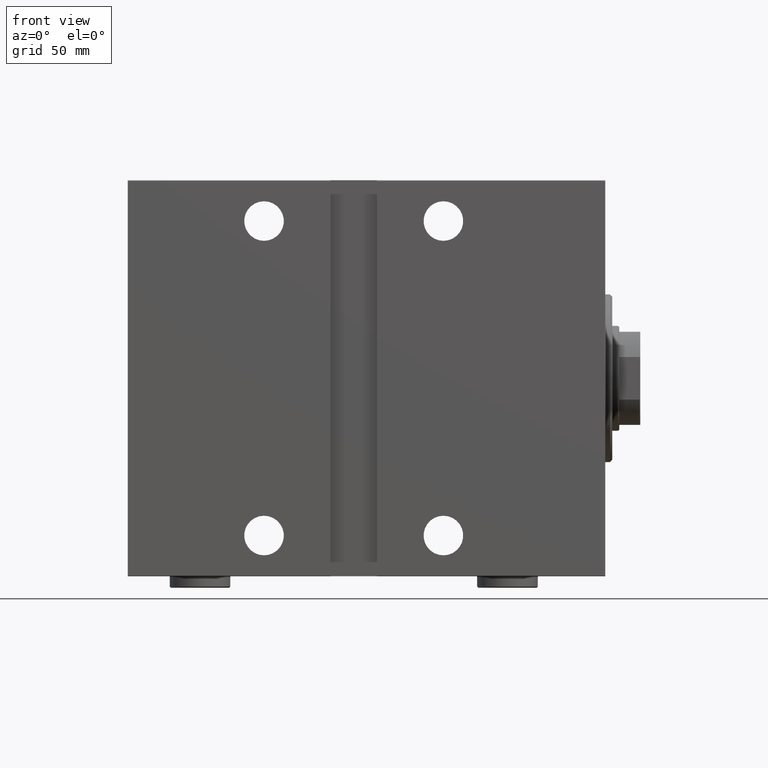
[diagram: clean part render]
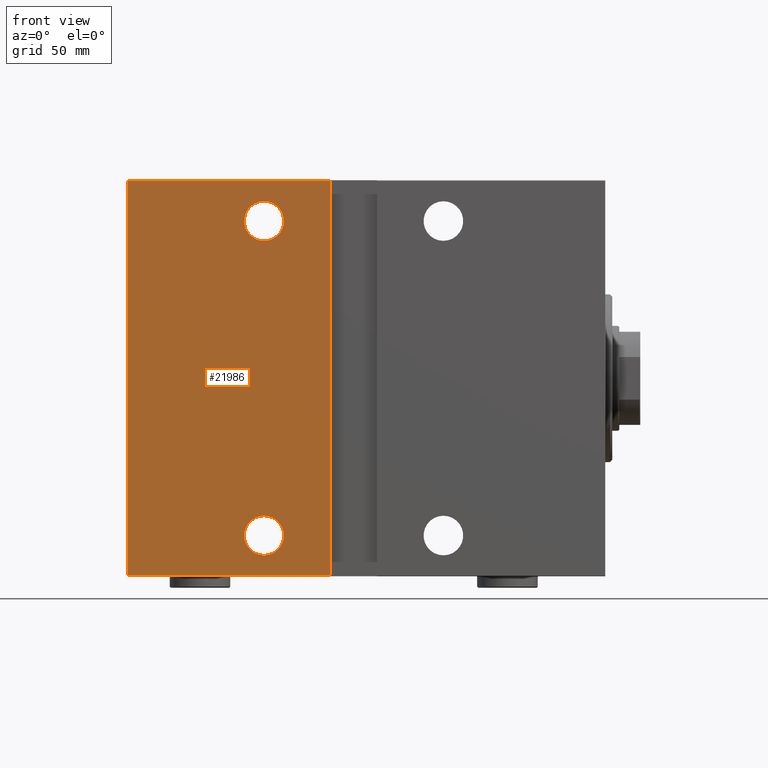
[diagram: same view with one face highlighted and labeled with its STEP entity id]
A machine part, front view. The second image highlights one B-rep face of the part: STEP entity #21986.
In plain terms, the highlighted planar face has unit normal (0, 1, 0).
Its self-contained STEP definition (entity closure, byte-faithful):
#910 = AXIS2_PLACEMENT_3D ( 'NONE', #19181, #2114, #35546 ) ;
#938 = VERTEX_POINT ( 'NONE', #3357 ) ;
#1704 = ORIENTED_EDGE ( 'NONE', *, *, #32960, .F. ) ;
#1838 = LINE ( 'NONE', #29895, #10386 ) ;
#2114 = DIRECTION ( 'NONE',  ( 0.000000000000000000, -1.000000000000000000, 0.000000000000000000 ) ) ;
#2144 = VERTEX_POINT ( 'NONE', #26355 ) ;
#2246 = DIRECTION ( 'NONE',  ( 1.000000000000000000, 0.000000000000000000, 0.000000000000000000 ) ) ;
#2925 = LINE ( 'NONE', #12594, #10987 ) ;
#3357 = CARTESIAN_POINT ( 'NONE',  ( 205.0000000000000000, 70.00000000000002842, -84.70000000000001705 ) ) ;
#4220 = VERTEX_POINT ( 'NONE', #5655 ) ;
#4593 = EDGE_CURVE ( 'NONE', #28761, #21746, #35958, .T. ) ;
#4963 = DIRECTION ( 'NONE',  ( 0.000000000000000000, 0.000000000000000000, -1.000000000000000000 ) ) ;
#5655 = CARTESIAN_POINT ( 'NONE',  ( 146.5000000000000000, 70.00000000000001421, 58.99999999999997868 ) ) ;
#7560 = AXIS2_PLACEMENT_3D ( 'NONE', #42429, #11929, #4963 ) ;
#8029 = DIRECTION ( 'NONE',  ( 0.000000000000000000, -1.000000000000000000, 0.000000000000000000 ) ) ;
#8522 = DIRECTION ( 'NONE',  ( 0.000000000000000000, 0.000000000000000000, -1.000000000000000000 ) ) ;
#8721 = AXIS2_PLACEMENT_3D ( 'NONE', #15704, #25600, #8522 ) ;
#8812 = EDGE_CURVE ( 'NONE', #4220, #43080, #43189, .T. ) ;
#10090 = EDGE_CURVE ( 'NONE', #12923, #14780, #19310, .T. ) ;
#10386 = VECTOR ( 'NONE', #12383, 1000.000000000000000 ) ;
#10820 = VECTOR ( 'NONE', #22520, 1000.000000000000000 ) ;
#10987 = VECTOR ( 'NONE', #16619, 1000.000000000000000 ) ;
#11844 = FACE_BOUND ( 'NONE', #30781, .T. ) ;
#11929 = DIRECTION ( 'NONE',  ( 0.000000000000000000, -1.000000000000000000, 0.000000000000000000 ) ) ;
#12383 = DIRECTION ( 'NONE',  ( 0.000000000000000000, 0.000000000000000000, 1.000000000000000000 ) ) ;
#12402 = ORIENTED_EDGE ( 'NONE', *, *, #13140, .T. ) ;
#12594 = CARTESIAN_POINT ( 'NONE',  ( 118.0000000000000142, 70.00000000000004263, -85.00000000000001421 ) ) ;
#12905 = ORIENTED_EDGE ( 'NONE', *, *, #34862, .T. ) ;
#12923 = VERTEX_POINT ( 'NONE', #38716 ) ;
#13140 = EDGE_CURVE ( 'NONE', #43080, #4220, #26855, .T. ) ;
#14780 = VERTEX_POINT ( 'NONE', #39141 ) ;
#15207 = FACE_OUTER_BOUND ( 'NONE', #41689, .T. ) ;
#15704 = CARTESIAN_POINT ( 'NONE',  ( 146.5000000000000284, 70.00000000000004263, -67.50000000000004263 ) ) ;
#16619 = DIRECTION ( 'NONE',  ( -8.163404592832031500E-17, 1.632680918566406300E-16, -1.000000000000000000 ) ) ;
#18889 = DIRECTION ( 'NONE',  ( 0.000000000000000000, 0.000000000000000000, -1.000000000000000000 ) ) ;
#19181 = CARTESIAN_POINT ( 'NONE',  ( 146.5000000000000000, 70.00000000000001421, 67.49999999999998579 ) ) ;
#19310 = LINE ( 'NONE', #37005, #39619 ) ;
#21746 = VERTEX_POINT ( 'NONE', #34086 ) ;
#21986 = ADVANCED_FACE ( 'NONE', ( #11844, #23014, #15207 ), #29973, .F. ) ;
#22215 = EDGE_CURVE ( 'NONE', #938, #2144, #29693, .T. ) ;
#22520 = DIRECTION ( 'NONE',  ( -1.000000000000000000, 0.000000000000000000, 0.000000000000000000 ) ) ;
#23014 = FACE_BOUND ( 'NONE', #29654, .T. ) ;
#24136 = ORIENTED_EDGE ( 'NONE', *, *, #29385, .F. ) ;
#25600 = DIRECTION ( 'NONE',  ( 0.000000000000000000, -1.000000000000000000, 0.000000000000000000 ) ) ;
#26332 = CARTESIAN_POINT ( 'NONE',  ( 205.0000000000000000, 70.00000000000002842, -84.70000000000001705 ) ) ;
#26355 = CARTESIAN_POINT ( 'NONE',  ( 118.0000000000000142, 70.00000000000004263, -84.70000000000001705 ) ) ;
#26855 = CIRCLE ( 'NONE', #30405, 8.500000000000014211 ) ;
#27564 = ORIENTED_EDGE ( 'NONE', *, *, #22215, .T. ) ;
#28761 = VERTEX_POINT ( 'NONE', #34523 ) ;
#29385 = EDGE_CURVE ( 'NONE', #12923, #2144, #2925, .T. ) ;
#29654 = EDGE_LOOP ( 'NONE', ( #12402, #42693 ) ) ;
#29693 = LINE ( 'NONE', #26332, #10820 ) ;
#29895 = CARTESIAN_POINT ( 'NONE',  ( 205.0000000000000000, 70.00000000000002842, -85.00000000000000000 ) ) ;
#29973 = PLANE ( 'NONE',  #32288 ) ;
#30405 = AXIS2_PLACEMENT_3D ( 'NONE', #39506, #38448, #18889 ) ;
#30781 = EDGE_LOOP ( 'NONE', ( #12905, #42869 ) ) ;
#32288 = AXIS2_PLACEMENT_3D ( 'NONE', #35829, #8029, #40260 ) ;
#32911 = CARTESIAN_POINT ( 'NONE',  ( 146.5000000000000000, 70.00000000000001421, 76.00000000000000000 ) ) ;
#32960 = EDGE_CURVE ( 'NONE', #938, #14780, #1838, .T. ) ;
#34086 = CARTESIAN_POINT ( 'NONE',  ( 146.5000000000000284, 70.00000000000004263, -59.00000000000002842 ) ) ;
#34523 = CARTESIAN_POINT ( 'NONE',  ( 146.5000000000000284, 70.00000000000004263, -76.00000000000005684 ) ) ;
#34862 = EDGE_CURVE ( 'NONE', #21746, #28761, #40525, .T. ) ;
#35546 = DIRECTION ( 'NONE',  ( 0.000000000000000000, 0.000000000000000000, -1.000000000000000000 ) ) ;
#35829 = CARTESIAN_POINT ( 'NONE',  ( 205.0000000000000000, 70.00000000000002842, -85.00000000000000000 ) ) ;
#35958 = CIRCLE ( 'NONE', #8721, 8.500000000000007105 ) ;
#36518 = ORIENTED_EDGE ( 'NONE', *, *, #10090, .T. ) ;
#37005 = CARTESIAN_POINT ( 'NONE',  ( 205.0000000000000000, 70.00000000000002842, 84.69999999999998863 ) ) ;
#38448 = DIRECTION ( 'NONE',  ( 0.000000000000000000, -1.000000000000000000, 0.000000000000000000 ) ) ;
#38716 = CARTESIAN_POINT ( 'NONE',  ( 118.0000000000000284, 70.00000000000001421, 84.70000000000000284 ) ) ;
#39141 = CARTESIAN_POINT ( 'NONE',  ( 205.0000000000000000, 70.00000000000002842, 84.69999999999998863 ) ) ;
#39506 = CARTESIAN_POINT ( 'NONE',  ( 146.5000000000000000, 70.00000000000001421, 67.49999999999998579 ) ) ;
#39619 = VECTOR ( 'NONE', #2246, 1000.000000000000000 ) ;
#40260 = DIRECTION ( 'NONE',  ( 0.000000000000000000, -0.000000000000000000, -1.000000000000000000 ) ) ;
#40525 = CIRCLE ( 'NONE', #7560, 8.500000000000007105 ) ;
#41689 = EDGE_LOOP ( 'NONE', ( #1704, #27564, #24136, #36518 ) ) ;
#42429 = CARTESIAN_POINT ( 'NONE',  ( 146.5000000000000284, 70.00000000000004263, -67.50000000000004263 ) ) ;
#42693 = ORIENTED_EDGE ( 'NONE', *, *, #8812, .T. ) ;
#42869 = ORIENTED_EDGE ( 'NONE', *, *, #4593, .T. ) ;
#43080 = VERTEX_POINT ( 'NONE', #32911 ) ;
#43189 = CIRCLE ( 'NONE', #910, 8.500000000000014211 ) ;